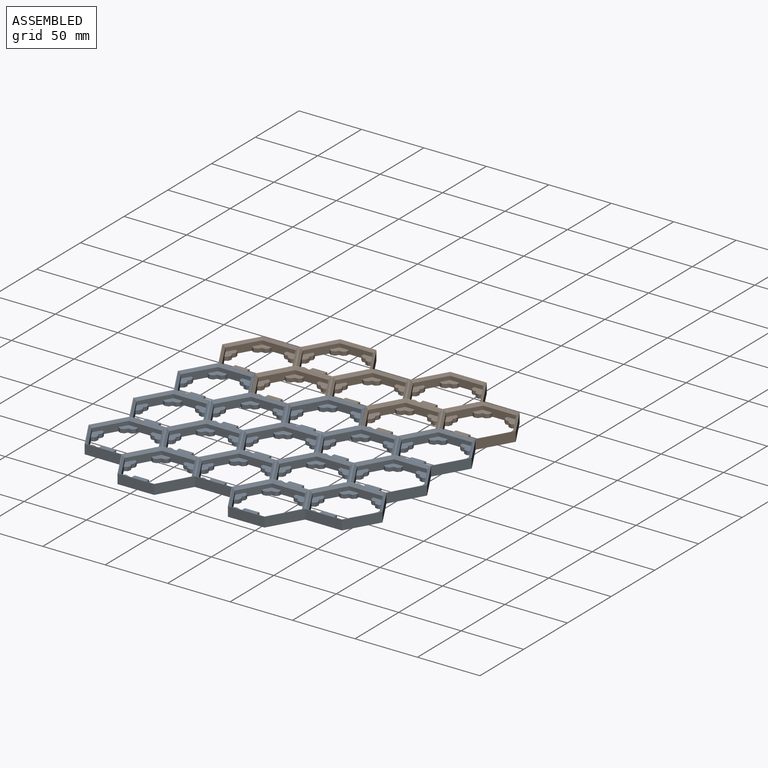
[diagram: assembled view]
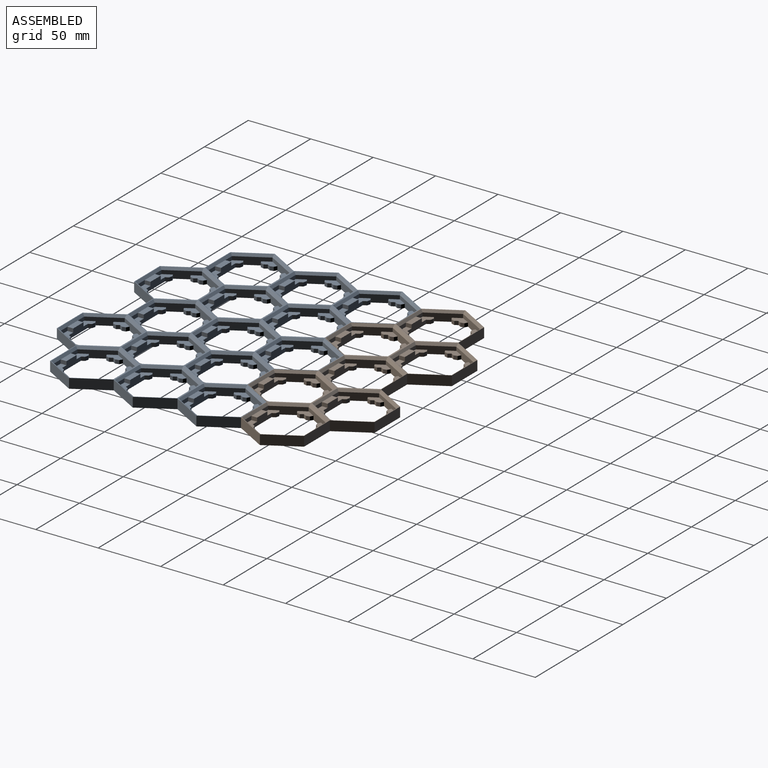
[diagram: assembled view, second angle]
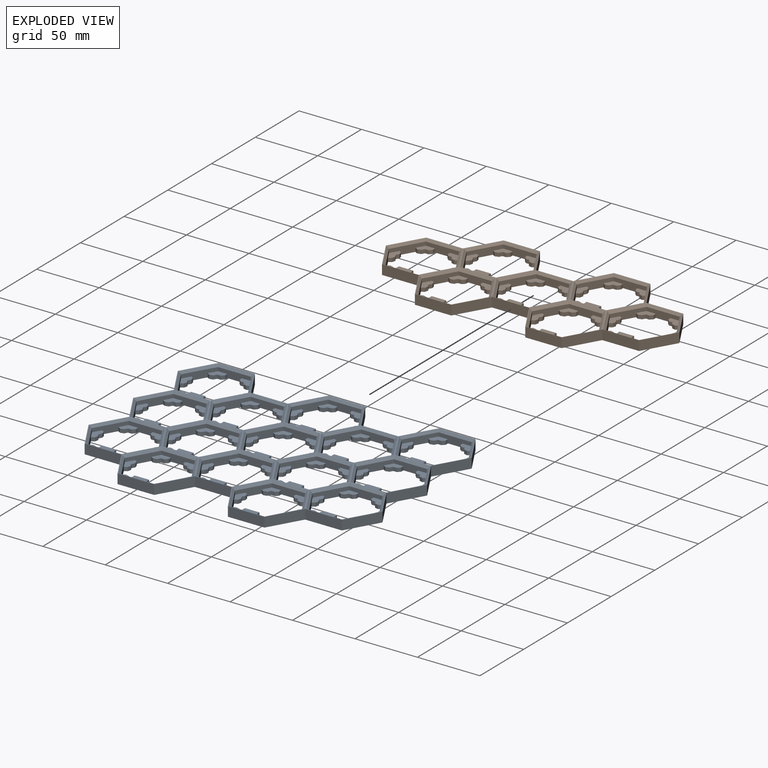
[diagram: exploded view]
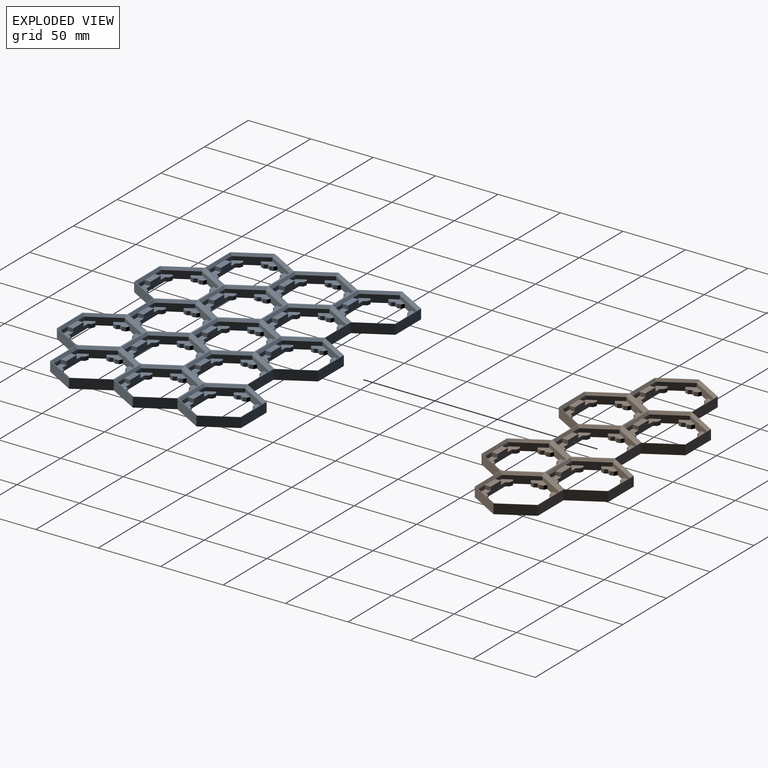
[diagram: exploded view, second angle]
FCSTD DOCUMENT  (FreeCAD 1.0R39109 (Git))
Label: big plate
License: All rights reserved
LicenseURL: https://en.wikipedia.org/wiki/All_rights_reserved
objects: Part::Feature×2, App::Link×2, App::FeaturePython×2, Assembly::JointGroup×1, Assembly::AssemblyObject×1
note: 2 computed .brp shape members not serialized (recipe doc carries the construction recipe); baked Part::Feature solids carry a one-line shape summary decoded from their .brp

FEATURE [Part::Feature] __7_Plate002_solid  label="5_7_plate"
  shape: bbox 235 x 101.5 x 7.75 mm, 523 faces (baked)
FEATURE [Part::Feature] __15_Plate002_solid  label="5_15 plate"
  shape: bbox 235.3 x 178.3 x 7.75 mm, 1102 faces (baked)
FEATURE [App::Link] __15_plate  label="5_15 plate001"
  LinkedObject = -> __15_Plate002_solid
FEATURE [App::FeaturePython] GroundedJoint  # Assembly grounded joint (typed FeaturePython)
  ObjectToGround = -> __15_plate
FEATURE [App::Link] __7_plate  label="5_7_plate001"
  LinkPlacement = pos=(1.5e-15,101.65,9e-16) rot=(0,0,1;0rad)
  LinkedObject = -> __7_Plate002_solid
  Placement = pos=(1.5e-15,101.65,9e-16) rot=(0,0,1;0rad)
FEATURE [App::FeaturePython] Joint  label="Fixed"  # Assembly joint (typed FeaturePython)
  Activated = true
  AngleMax = 0
  AngleMin = 0
  Detach1 = false
  Detach2 = false
  Distance = 0
  Distance2 = 0
  EnableAngleMax = false
  EnableAngleMin = false
  EnableLengthMax = false
  EnableLengthMin = false
  JointType = 0 (Fixed)
  LengthMax = 0
  LengthMin = 0
  Offset2 = pos=(0,0,0) rot=(0,0,1;3.14159rad)
  Placement1 = pos=(-9e-16,-25.25,-4.125) rot=(0.57735,0.57735,-0.57735;2.0944rad)
  Placement2 = pos=(-4e-16,76.4,-4.125) rot=(0.57735,-0.57735,-0.57735;4.18879rad)
  Reference1 = -> Assembly [__7_plate.Face430,__7_plate.Face430]
  Reference2 = -> Assembly [__15_plate.Face846,__15_plate.Face846]
FEATURE [Assembly::JointGroup] Joints
  Group = -> [GroundedJoint,Joint]
FEATURE [Assembly::AssemblyObject] Assembly
  Group = -> [Joints,__15_plate,GroundedJoint,__7_plate,Joint]
  Origin = -> Origin
  Type = Assembly
